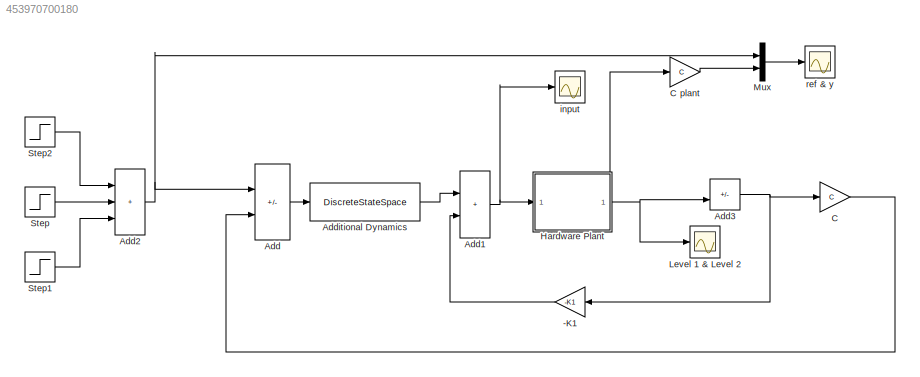
MODEL slx_453970700180
KIND model
CONFIG AbsTol = auto
CONFIG EnableMultiTasking = on
CONFIG FixedStep = auto
CONFIG MaxStep = auto
CONFIG MinStep = auto
CONFIG RelTol = 1e-3
CONFIG SampleTimeConstraint = Unconstrained
CONFIG SolverName = ode45
CONFIG StartTime = 0.0
CONFIG StopTime = 135
BLOCK [Gain] -K1
  Gain = -K1
  Multiplication = Matrix(K*u)
  NameLocation = top
  SampleTime = T
BLOCK [Sum] Add
  IconShape = rectangular
  Inputs = +-
  SampleTime = T
BLOCK [Sum] Add1
  IconShape = rectangular
  SampleTime = T
BLOCK [Sum] Add2
  IconShape = rectangular
  Inputs = +++
  SampleTime = T
BLOCK [Sum] Add3
  IconShape = rectangular
  Inputs = -+
  SampleTime = T
BLOCK [DiscreteStateSpace] Additional Dynamics
  A = phia
  B = gammaa
  C = K2
  D = 0
  SampleTime = T
BLOCK [Gain] C
  Gain = C
  Multiplication = Matrix(K*u)
  SampleTime = T
BLOCK [Gain] C plant
  Gain = C
  Multiplication = Matrix(K*u)
  SampleTime = T
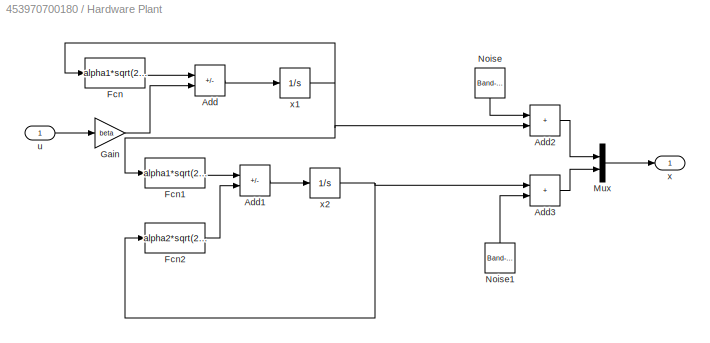
BLOCK [SubSystem] Hardware Plant
BLOCK [Sum] Hardware Plant/Add
  IconShape = rectangular
  Inputs = -+
BLOCK [Sum] Hardware Plant/Add1
  IconShape = rectangular
  Inputs = +-
BLOCK [Sum] Hardware Plant/Add2
  IconShape = rectangular
BLOCK [Sum] Hardware Plant/Add3
  IconShape = rectangular
BLOCK [Fcn] Hardware Plant/Fcn
  Expr = alpha1*sqrt(2*g*u(1))
BLOCK [Fcn] Hardware Plant/Fcn1
  Expr = alpha1*sqrt(2*g*u(1))
BLOCK [Fcn] Hardware Plant/Fcn2
  Expr = alpha2*sqrt(2*g*u(1))
BLOCK [Gain] Hardware Plant/Gain
  Gain = beta
BLOCK [Mux] Hardware Plant/Mux
  DisplayOption = bar
  Inputs = 2
BLOCK [Reference] Hardware Plant/Noise  REF=simulink/Sources/Band-Limited
White Noise
  NameLocation = left
  SourceBlock = simulink/Sources/Band-Limited\nWhite Noise
  SourceType = Band-Limited White Noise.
BLOCK [Reference] Hardware Plant/Noise1  REF=simulink/Sources/Band-Limited
White Noise
  NameLocation = right
  SourceBlock = simulink/Sources/Band-Limited\nWhite Noise
  SourceType = Band-Limited White Noise.
BLOCK [Inport] Hardware Plant/u
BLOCK [Outport] Hardware Plant/x
BLOCK [Integrator] Hardware Plant/x1
BLOCK [Integrator] Hardware Plant/x2
BLOCK [Scope] Level 1 & Level 2
  Floating = off
  NumInputPorts = 1
  ScopeSpecificationString = Simulink.scopes.TimeScopeBlockCfg('CurrentConfiguration', extmgr.ConfigurationSet(extmgr.Configuration('Core','General UI',true,'FigureColor',[0.156862745098039 0.156862745098039 0.156862745098039]),extmgr.Configuration('Core','Source UI',true),extmgr.Configuration('Sources','WiredSimulink',true,'DataLoggingLimitDataPoints',true,'DataLoggingVariableName','ScopeData2','DataLoggingSaveFormat','Struc...<+2872ch>
BLOCK [Mux] Mux
  DisplayOption = bar
  Inputs = 2
BLOCK [Step] Step
  After = 3
  SampleTime = 0
  Time = 45
BLOCK [Step] Step1
  After = -6
  SampleTime = 0
  Time = 90
BLOCK [Step] Step2
  After = 15
  SampleTime = 0
  Time = 0
BLOCK [Scope] input
  Floating = off
  NumInputPorts = 1
  ScopeSpecificationString = Simulink.scopes.TimeScopeBlockCfg('CurrentConfiguration', extmgr.ConfigurationSet(extmgr.Configuration('Core','General UI',true,'FigureColor',[0.156862745098039 0.156862745098039 0.156862745098039]),extmgr.Configuration('Core','Source UI',true),extmgr.Configuration('Sources','WiredSimulink',true,'DataLoggingLimitDataPoints',true,'DataLoggingVariableName','ScopeData1','DataLoggingSaveFormat','Struc...<+2842ch>
BLOCK [Scope] ref & y
  Floating = off
  NumInputPorts = 1
  ScopeSpecificationString = Simulink.scopes.TimeScopeBlockCfg('CurrentConfiguration', extmgr.ConfigurationSet(extmgr.Configuration('Core','General UI',true),extmgr.Configuration('Core','Source UI',true),extmgr.Configuration('Sources','WiredSimulink',true,'DataLoggingLimitDataPoints',true,'DataLoggingSaveFormat','StructureWithTime','DataLoggingDecimation','1','DataLoggingDecimateData',true),extmgr.Configuration('Visuals','Tim...<+1674ch>
LINE -K1:1 -> Add1:2
NET Add1:1 -> Hardware Plant:1, input:1
NET Add2:1 -> Add:1, Mux:1
NET Add3:1 -> -K1:1, C:1
LINE Add:1 -> Additional Dynamics:1
LINE Additional Dynamics:1 -> Add1:1
LINE C plant:1 -> Mux:2
LINE C:1 -> Add:2
LINE Hardware Plant/Add1:1 -> Hardware Plant/x2:1
LINE Hardware Plant/Add2:1 -> Hardware Plant/Mux:1
LINE Hardware Plant/Add3:1 -> Hardware Plant/Mux:2
LINE Hardware Plant/Add:1 -> Hardware Plant/x1:1
LINE Hardware Plant/Fcn1:1 -> Hardware Plant/Add1:1
LINE Hardware Plant/Fcn2:1 -> Hardware Plant/Add1:2
LINE Hardware Plant/Fcn:1 -> Hardware Plant/Add:1
LINE Hardware Plant/Gain:1 -> Hardware Plant/Add:2
LINE Hardware Plant/Mux:1 -> Hardware Plant/x:1
LINE Hardware Plant/Noise1:1 -> Hardware Plant/Add3:2
LINE Hardware Plant/Noise:1 -> Hardware Plant/Add2:1
LINE Hardware Plant/u:1 -> Hardware Plant/Gain:1
NET Hardware Plant/x1:1 -> Hardware Plant/Add2:2, Hardware Plant/Fcn1:1, Hardware Plant/Fcn:1
NET Hardware Plant/x2:1 -> Hardware Plant/Add3:1, Hardware Plant/Fcn2:1
NET Hardware Plant:1 -> Add3:2, C plant:1, Level 1 & Level 2:1
LINE Mux:1 -> ref & y:1
LINE Step1:1 -> Add2:3
LINE Step2:1 -> Add2:1
LINE Step:1 -> Add2:2
note: NET lines group one-source signal fan-out (src -> all destinations, sorted); 1:1 wires keep LINE
